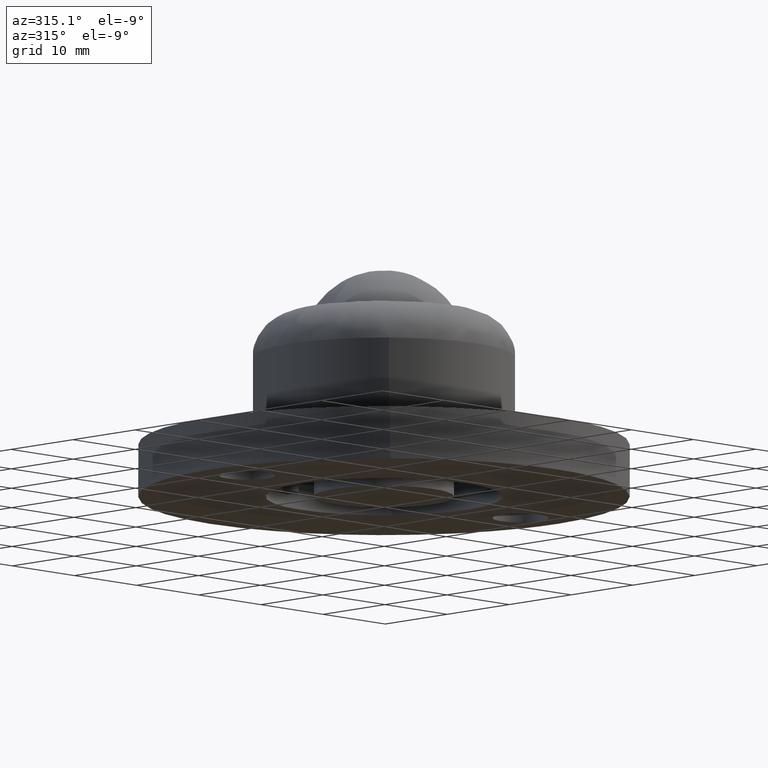
[diagram: clean part render]
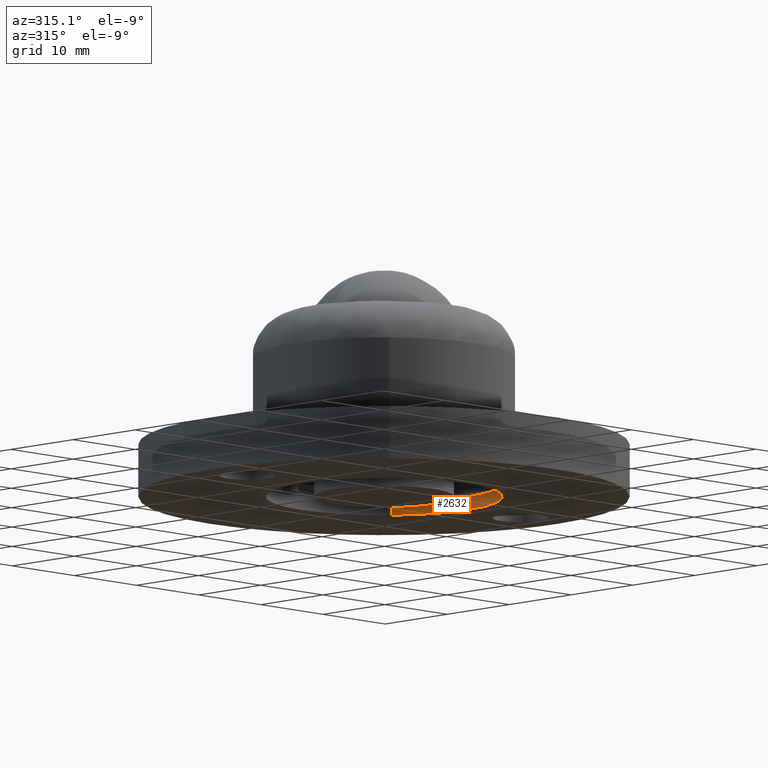
[diagram: same view with one face highlighted and labeled with its STEP entity id]
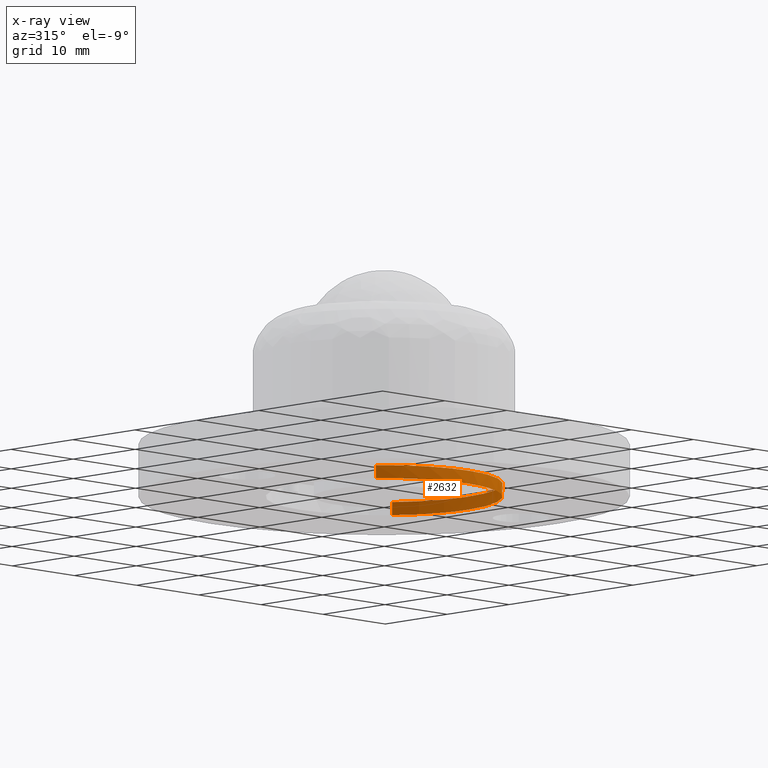
[diagram: x-ray of the same camera — body ghosted, the highlighted face saturated]
A machine part, auxiliary view. The second image highlights one B-rep face of the part: STEP entity #2632.
The next image is the same camera in x-ray: the body ghosted, the highlighted face saturated — about 3% of this face is hidden behind the body in this view.
In plain terms, the highlighted face is a freeform B-spline surface patch.
Its self-contained STEP definition (entity closure, byte-faithful):
#2028=CARTESIAN_POINT('',(13.499999999999920,0.0,1.110223E-013));
#2029=VERTEX_POINT('',#2028);
#2030=CARTESIAN_POINT('',(-0.000000821336293,-13.499999999999980,1.110223E-013));
#2031=VERTEX_POINT('',#2030);
#2032=CARTESIAN_POINT('',(13.499999999999920,0.0,1.110223E-013));
#2033=CARTESIAN_POINT('',(13.500008180813641,-0.552224802537417,1.132930E-013));
#2034=CARTESIAN_POINT('',(13.425383920051960,-1.767138858311272,1.179819E-013));
#2035=CARTESIAN_POINT('',(13.101291079718500,-3.396406061328572,1.233486E-013));
#2036=CARTESIAN_POINT('',(12.563635253956630,-5.023894539196344,1.278300E-013));
#2037=CARTESIAN_POINT('',(11.886277352415769,-6.479108201734817,1.310285E-013));
#2038=CARTESIAN_POINT('',(10.894668523111140,-8.045026369429447,1.333900E-013));
#2039=CARTESIAN_POINT('',(9.606295086129952,-9.566755460000270,1.343495E-013));
#2040=CARTESIAN_POINT('',(7.818352154180727,-11.099604355282500,1.333006E-013));
#2041=CARTESIAN_POINT('',(5.920713787305669,-12.197771007101689,1.300132E-013));
#2042=CARTESIAN_POINT('',(3.879641327803428,-12.977855708781661,1.248281E-013));
#2043=CARTESIAN_POINT('',(2.015646705363771,-13.402431608563370,1.189093E-013));
#2044=CARTESIAN_POINT('',(0.635064973161098,-13.500021810140460,1.136337E-013));
#2045=CARTESIAN_POINT('',(-0.000000821336293,-13.499999999999980,1.110223E-013));
#2046=B_SPLINE_CURVE_WITH_KNOTS('',3,(#2032,#2033,#2034,#2035,#2036,#2037,#2038,#2039,#2040,#2041,#2042,#2043,#2044,#2045),.UNSPECIFIED.,.F.,.U.,(4,1,1,1,1,1,1,1,1,1,1,4),(0.000000042686732,1.656679621512165,3.644734299546414,4.970104145393378,6.792479202679070,8.449199218281660,10.520085236211729,12.756586147136730,15.490162487164630,17.064032182357352,19.300583902824890,21.205784140319000),.UNSPECIFIED.);
#2047=EDGE_CURVE('',#2029,#2031,#2046,.T.);
#2049=CARTESIAN_POINT('',(10.160476679872970,8.889022394650336,1.333190E-013));
#2050=VERTEX_POINT('',#2049);
#2051=CARTESIAN_POINT('',(10.160476679872970,8.889022394650336,1.333190E-013));
#2052=CARTESIAN_POINT('',(10.759536514189319,8.204446387381198,1.330076E-013));
#2053=CARTESIAN_POINT('',(11.641917817422380,6.962042521246568,1.316003E-013));
#2054=CARTESIAN_POINT('',(12.653766265163160,4.863201979181537,1.272540E-013));
#2055=CARTESIAN_POINT('',(13.325651528398700,2.627894753151577,1.209567E-013));
#2056=CARTESIAN_POINT('',(13.500136547668131,0.909681738050374,1.147099E-013));
#2057=CARTESIAN_POINT('',(13.499999999999920,0.0,1.110223E-013));
#2058=B_SPLINE_CURVE_WITH_KNOTS('',3,(#2051,#2052,#2053,#2054,#2055,#2056,#2057),.UNSPECIFIED.,.F.,.U.,(4,1,1,1,4),(9.232409E-009,2.729017091362597,4.548370917021153,6.974151114819970,9.703168196946713),.UNSPECIFIED.);
#2059=EDGE_CURVE('',#2050,#2029,#2058,.T.);
#2093=CARTESIAN_POINT('',(-10.160476679873231,-8.889022394650416,5.042684E-014));
#2094=VERTEX_POINT('',#2093);
#2106=CARTESIAN_POINT('',(-0.000000821336293,-13.499999999999980,1.110223E-013));
#2107=CARTESIAN_POINT('',(-0.629048289209823,-13.500021477605580,1.084447E-013));
#2108=CARTESIAN_POINT('',(-1.947051028538384,-13.407731000191401,1.026643E-013));
#2109=CARTESIAN_POINT('',(-4.001018138151703,-12.956364376003259,9.239161E-014));
#2110=CARTESIAN_POINT('',(-5.956021095465533,-12.176811602615549,8.117496E-014));
#2111=CARTESIAN_POINT('',(-7.479303430704412,-11.272187677542270,7.121313E-014));
#2112=CARTESIAN_POINT('',(-8.868036840396183,-10.225899262059400,6.122013E-014));
#2113=CARTESIAN_POINT('',(-9.667428822906189,-9.452680913584128,5.476497E-014));
#2114=CARTESIAN_POINT('',(-10.160476679873231,-8.889022394650416,5.042684E-014));
#2115=B_SPLINE_CURVE_WITH_KNOTS('',3,(#2106,#2107,#2108,#2109,#2110,#2111,#2112,#2113,#2114),.UNSPECIFIED.,.F.,.U.,(4,1,1,1,1,1,4),(0.000000013556114,1.887145451183377,3.954024958332898,6.290486083373238,8.177638102929079,9.256013284159561,11.502615537517190),.UNSPECIFIED.);
#2116=EDGE_CURVE('',#2031,#2094,#2115,.T.);
#2486=CARTESIAN_POINT('',(-10.160476529553710,-8.889022257390849,1.500000000001712));
#2487=VERTEX_POINT('',#2486);
#2497=CARTESIAN_POINT('',(-10.160476529553710,-8.889022257390849,1.500000000001712));
#2498=CARTESIAN_POINT('',(-10.160476679873231,-8.889022394650416,5.042684E-014));
#2499=QUASI_UNIFORM_CURVE('',1,(#2497,#2498),.UNSPECIFIED.,.F.,.U.);
#2500=EDGE_CURVE('',#2487,#2094,#2499,.T.);
#2505=CARTESIAN_POINT('',(10.160476489869920,8.889022302750707,1.500000000003378));
#2506=VERTEX_POINT('',#2505);
#2507=CARTESIAN_POINT('',(10.160476489869920,8.889022302750707,1.500000000003378));
#2508=CARTESIAN_POINT('',(10.160476679872970,8.889022394650336,1.333190E-013));
#2509=QUASI_UNIFORM_CURVE('',1,(#2507,#2508),.UNSPECIFIED.,.F.,.U.);
#2510=EDGE_CURVE('',#2506,#2050,#2509,.T.);
#2569=CARTESIAN_POINT('',(10.160476505744320,8.889022284605643,1.574924954613458));
#2570=CARTESIAN_POINT('',(19.049498790349972,-1.271454221138766,1.574924954613458));
#2571=CARTESIAN_POINT('',(8.889022284605558,-10.160476505744411,1.574924954613458));
#2572=CARTESIAN_POINT('',(-1.271454221138852,-19.049498790350057,1.574924954613458));
#2573=CARTESIAN_POINT('',(-10.160476505744491,-8.889022284605643,1.574924954613458));
#2574=CARTESIAN_POINT('',(10.160476505744320,8.889022284605643,-0.074925074642312));
#2575=CARTESIAN_POINT('',(19.049498790349972,-1.271454221138766,-0.074925074642312));
#2576=CARTESIAN_POINT('',(8.889022284605558,-10.160476505744411,-0.074925074642312));
#2577=CARTESIAN_POINT('',(-1.271454221138852,-19.049498790350057,-0.074925074642312));
#2578=CARTESIAN_POINT('',(-10.160476505744491,-8.889022284605643,-0.074925074642312));
#2586=(BOUNDED_SURFACE()B_SPLINE_SURFACE(2,1,((#2569,#2574),(#2570,#2575),(#2571,#2576),(#2572,#2577),(#2573,#2578)),.UNSPECIFIED.,.F.,.F.,.U.)B_SPLINE_SURFACE_WITH_KNOTS((3,2,3),(2,2),(0.0,22.367532368147121,44.735064736294248),(0.0,1.649850029255770),.UNSPECIFIED.)GEOMETRIC_REPRESENTATION_ITEM()RATIONAL_B_SPLINE_SURFACE(((1.0,1.0),(0.707106781186548,0.707106781186548),(1.0,1.0),(0.707106781186548,0.707106781186548),(1.0,1.0)))REPRESENTATION_ITEM('')SURFACE());
#2587=CARTESIAN_POINT('',(11.292820316394531,-7.397446133742709,1.500000000000055));
#2588=VERTEX_POINT('',#2587);
#2589=CARTESIAN_POINT('',(11.292820316394531,-7.397446133742709,1.500000000000055));
#2590=CARTESIAN_POINT('',(10.955568068820041,-7.912332176453506,1.500000000000134));
#2591=CARTESIAN_POINT('',(10.171261534810650,-8.947626804148895,1.500000000000301));
#2592=CARTESIAN_POINT('',(8.991642703245660,-10.111110196599309,1.500000000000502));
#2593=CARTESIAN_POINT('',(7.714340601412892,-11.109228033242999,1.500000000000705));
#2594=CARTESIAN_POINT('',(6.475816050599993,-11.883899930325990,1.500000000000875));
#2595=CARTESIAN_POINT('',(4.917321074635334,-12.611070727183909,1.500000000001053));
#2596=CARTESIAN_POINT('',(3.278693495867318,-13.137025204635590,1.500000000001224));
#2597=CARTESIAN_POINT('',(1.712974178146161,-13.417710149101859,1.500000000001373));
#2598=CARTESIAN_POINT('',(0.160307551937493,-13.525658595108601,1.500000000001486));
#2599=CARTESIAN_POINT('',(-1.169673937827046,-13.474344893498820,1.500000000001573));
#2600=CARTESIAN_POINT('',(-2.709997458847095,-13.252639182466730,1.500000000001666));
#2601=CARTESIAN_POINT('',(-4.062511466504597,-12.905938420183160,1.500000000001669));
#2602=CARTESIAN_POINT('',(-5.697711110250348,-12.279012634378470,1.500000000001783));
#2603=CARTESIAN_POINT('',(-7.272969836625207,-11.434561302396270,1.500000000001776));
#2604=CARTESIAN_POINT('',(-8.858190030284273,-10.246146351377391,1.500000000001771));
#2605=CARTESIAN_POINT('',(-9.755221566838490,-9.352278250149810,1.500000000001728));
#2606=CARTESIAN_POINT('',(-10.160476529553710,-8.889022257390849,1.500000000001712));
#2607=B_SPLINE_CURVE_WITH_KNOTS('',3,(#2589,#2590,#2591,#2592,#2593,#2594,#2595,#2596,#2597,#2598,#2599,#2600,#2601,#2602,#2603,#2604,#2605,#2606),.UNSPECIFIED.,.F.,.U.,(4,1,1,1,1,1,1,1,1,1,1,1,1,1,1,4),(0.000000054206701,1.846519346931117,3.887400937663855,4.956445675517422,6.705792154467446,8.260756576365822,10.107278760918760,11.856644262283160,13.022803908346511,14.772167458708690,15.841210825897790,17.687730515636641,18.951144064784931,21.089233606032529,23.032951781548238,24.879447625452570),.UNSPECIFIED.);
#2608=EDGE_CURVE('',#2588,#2487,#2607,.T.);
#2609=ORIENTED_EDGE('',*,*,#2608,.F.);
#2610=CARTESIAN_POINT('',(10.160476489869920,8.889022302750707,1.500000000003378));
#2611=CARTESIAN_POINT('',(10.746798184741190,8.219032809781419,1.500000000003318));
#2612=CARTESIAN_POINT('',(11.492865468424490,7.173255112518445,1.500000000003195));
#2613=CARTESIAN_POINT('',(12.364894774617410,5.489112027347237,1.500000000002962));
#2614=CARTESIAN_POINT('',(13.012223075102380,3.801309726015619,1.500000000002687));
#2615=CARTESIAN_POINT('',(13.401968511905810,1.962875562209747,1.500000000002367));
#2616=CARTESIAN_POINT('',(13.531918135785480,0.093056355170633,1.500000000001955));
#2617=CARTESIAN_POINT('',(13.436325555979151,-1.826642532208529,1.500000000001561));
#2618=CARTESIAN_POINT('',(12.997037407800050,-3.866409555596729,1.500000000001023));
#2619=CARTESIAN_POINT('',(12.235289468151000,-5.804337177309317,1.500000000000570));
#2620=CARTESIAN_POINT('',(11.630582041867930,-6.881867939478537,1.500000000000159));
#2621=CARTESIAN_POINT('',(11.292820316394531,-7.397446133742709,1.500000000000055));
#2622=B_SPLINE_CURVE_WITH_KNOTS('',3,(#2610,#2611,#2612,#2613,#2614,#2615,#2616,#2617,#2618,#2619,#2620,#2621),.UNSPECIFIED.,.F.,.U.,(4,1,1,1,1,1,1,1,1,4),(0.000000028145742,2.670904994986710,3.835150781005034,5.684250858033749,8.081230065902101,9.450896082370424,11.299996306323520,13.833944811191101,15.683036500359091,17.532125779519980),.UNSPECIFIED.);
#2623=EDGE_CURVE('',#2506,#2588,#2622,.T.);
#2624=ORIENTED_EDGE('',*,*,#2623,.F.);
#2625=ORIENTED_EDGE('',*,*,#2510,.T.);
#2626=ORIENTED_EDGE('',*,*,#2059,.T.);
#2627=ORIENTED_EDGE('',*,*,#2047,.T.);
#2628=ORIENTED_EDGE('',*,*,#2116,.T.);
#2629=ORIENTED_EDGE('',*,*,#2500,.F.);
#2630=EDGE_LOOP('',(#2609,#2624,#2625,#2626,#2627,#2628,#2629));
#2631=FACE_OUTER_BOUND('',#2630,.T.);
#2632=ADVANCED_FACE('',(#2631),#2586,.F.);